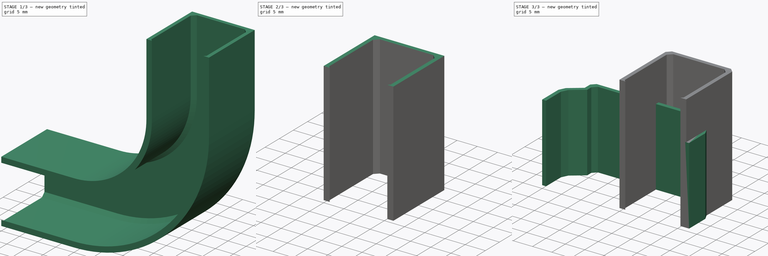
[diagram: build sequence overview — one tinted view per stage of 3, left to right]
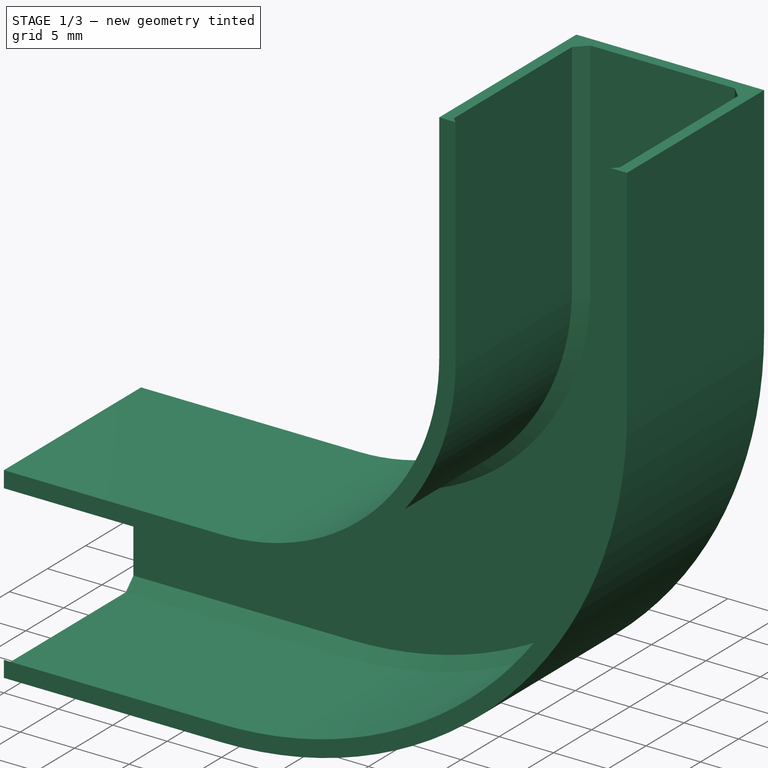
[diagram: stage 1 of 3 — iso view after this stage's code; geometry added in this stage tinted green]
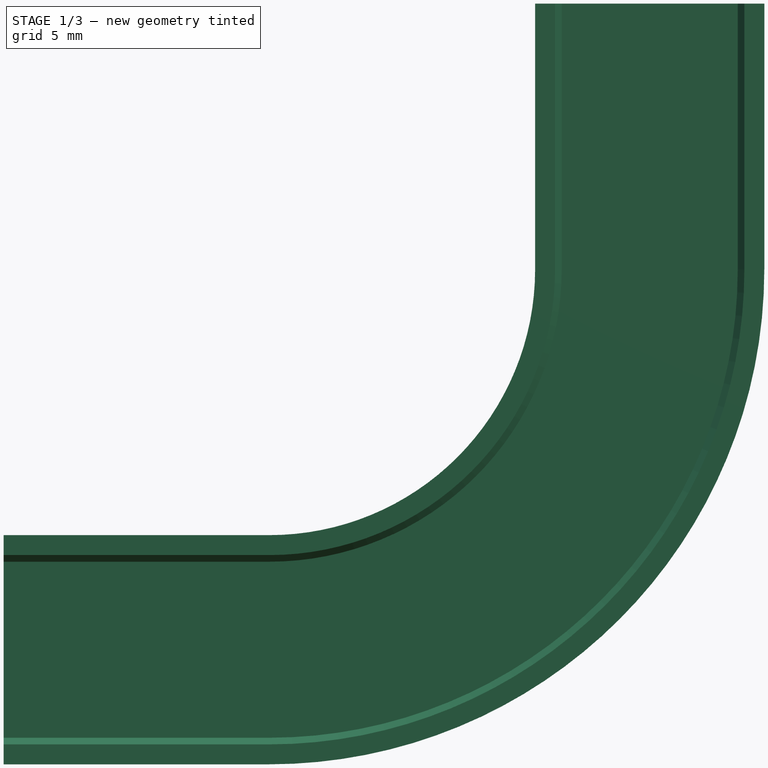
[diagram: stage 1 of 3 — front view after this stage's code; geometry added in this stage tinted green]
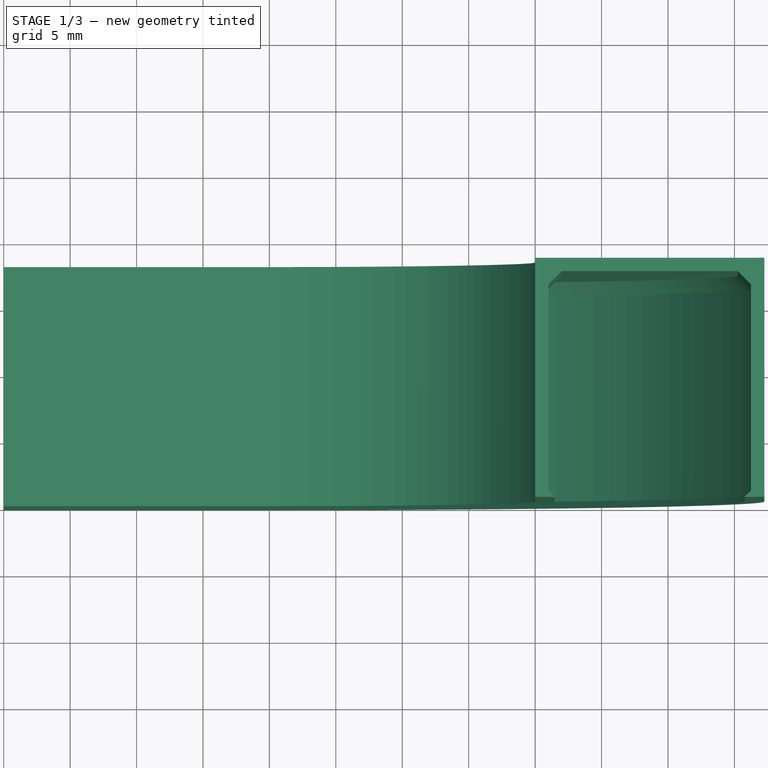
[diagram: stage 1 of 3 — top view after this stage's code; geometry added in this stage tinted green]
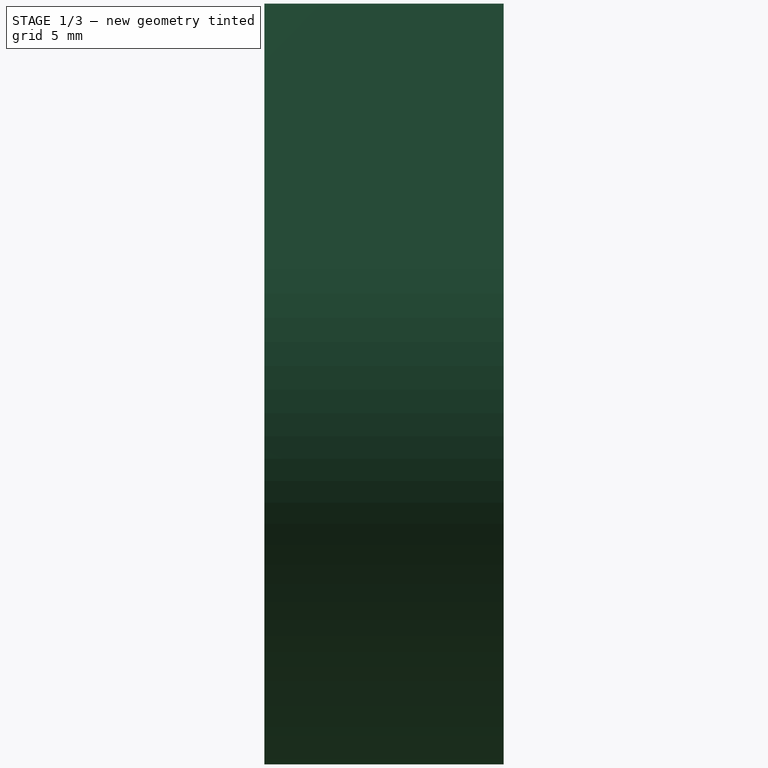
[diagram: stage 1 of 3 — right view after this stage's code; geometry added in this stage tinted green]
FCSTD DOCUMENT  (FreeCAD 0.21R33771 (Git))
Label: CableDuct15x17
License: All rights reserved
LicenseURL: https://en.wikipedia.org/wiki/All_rights_reserved
objects: PartDesign::Pad×4, PartDesign::Chamfer×3, PartDesign::Body×3, Sketcher::SketchObject×2, PartDesign::SubShapeBinder×2, Spreadsheet::Sheet×1, PartDesign::Revolution×1
note: 23 computed .brp shape members not serialized (recipe doc carries the construction recipe); baked Part::Feature solids carry a one-line shape summary decoded from their .brp

FEATURE [PartDesign::Body] Body  label="ClampBody"
  Group = -> [Sketch,Pad,Chamfer]
  Origin = -> Origin
  Tip = -> Chamfer
FEATURE [Sketcher::SketchObject] Sketch001
  FullyConstrained = true
  MapMode = 5
  Support = -> [XY_Plane001]
  expr: Constraints[20] = .Constraints.thickness
  expr: Constraints[21] = .Constraints.thickness
  expr: Constraints[32] = .Constraints.thickness
  expr: Constraints[42] = .Constraints.thickness
  sketch-geometry (16):
    g0: LineSegment StartX=21.5 StartY=0 StartZ=0 EndX=21 EndY=0.5 EndZ=0
    g1: LineSegment StartX=36.25 StartY=0.5 StartZ=0 EndX=35.75 EndY=0 EndZ=0
    g2: LineSegment StartX=35.75 StartY=0 StartZ=0 EndX=37.25 EndY=0 EndZ=0
    g3: LineSegment StartX=37.25 StartY=0 StartZ=0 EndX=37.25 EndY=18 EndZ=0
    g4: LineSegment StartX=37.25 StartY=18 StartZ=0 EndX=20 EndY=18 EndZ=0
    g5: LineSegment StartX=20 StartY=18 StartZ=0 EndX=20 EndY=0 EndZ=0
    g6: LineSegment StartX=20 StartY=0 StartZ=0 EndX=21.5 EndY=0 EndZ=0
    g7: LineSegment StartX=21 StartY=17 StartZ=0 EndX=22 EndY=17 EndZ=0
    g8: LineSegment StartX=21 StartY=0.5 StartZ=0 EndX=21 EndY=16 EndZ=0
    g9: LineSegment StartX=21 StartY=16 StartZ=0 EndX=21 EndY=17 EndZ=0
    g10: LineSegment StartX=22 StartY=17 StartZ=0 EndX=21 EndY=16 EndZ=0
    g11: LineSegment StartX=22 StartY=17 StartZ=0 EndX=35.25 EndY=17 EndZ=0
    g12: LineSegment StartX=35.25 StartY=17 StartZ=0 EndX=36.25 EndY=17 EndZ=0
    g13: LineSegment StartX=36.25 StartY=17 StartZ=0 EndX=36.25 EndY=16 EndZ=0
    g14: LineSegment StartX=36.25 StartY=16 StartZ=0 EndX=36.25 EndY=0.5 EndZ=0
    g15: LineSegment StartX=35.25 StartY=17 StartZ=0 EndX=36.25 EndY=16 EndZ=0
  constraints (46):
    c: PointOnObject(g0,g-1)
    c: Coincident(g0,g8)
    c: Coincident(g9,g7)
    c: Coincident(g12,g13)
    c: Coincident(g14,g1)
    c: PointOnObject(g1,g-1)
    c: Coincident(g1,g2)
    c: PointOnObject(g2,g-1)
    c: Coincident(g2,g3)
    c: Vertical(g3)
    c: Coincident(g3,g4)
    c: Horizontal(g4)
    c: Coincident(g4,g5)
    c: PointOnObject(g5,g-1)
    c: Vertical(g5)
    c: Coincident(g6,g5)
    c: Coincident(g6,g0)
    c: DistanceY(g-1,g9) = 17
    c: DistanceX(g7,g12) = 15.25
    c: DistanceX(g4,g9) = 1  'thickness'
    c: DistanceX(g12,g3) = 1
    c: DistanceY(g12,g3) = 1
    c: Angle(g2,g1) = 0.785398
    c: DistanceX(g2,g2) = 1.5
    c: Coincident(g7,g11)
    c: Horizontal(g7)
    c: Coincident(g8,g9)
    c: Vertical(g8)
    c: Vertical(g9)
    c: Coincident(g10,g7)
    c: Coincident(g10,g8)
    c: Angle(g7,g10) = 0.785398
    c: DistanceX(g7,g7) = 1
    c: Coincident(g11,g12)
    c: Horizontal(g11)
    c: Horizontal(g12)
    c: Coincident(g13,g14)
    c: Vertical(g13)
    c: Vertical(g14)
    c: Coincident(g15,g11)
    c: Coincident(g15,g13)
    c: Angle(g15,g12) = 0.785398
    c: DistanceX(g12,g12) = 1
    c: DistanceX(g-1,g5) = 20
    c: Equal(g2,g6)
    c: Equal(g8,g14)
FEATURE [PartDesign::SubShapeBinder] Binder
  BindCopyOnChange = 0
  BindMode = 0
  ClaimChildren = false
  Context = -> Body001 [Binder.]
  Fuse = false
  MakeFace = true
  OffsetFill = false
  OffsetIntersection = false
  OffsetJoinType = 0
  OffsetOpenResult = false
  PartialLoad = false
  Placement = pos=(0,0,0) rot=(0,-1,0;-1.5708rad)
  Relative = true
  Support = -> [Sketch001]
  _Version = 2
  expr: .Placement.Rotation.Angle = -90 °
FEATURE [Spreadsheet::Sheet] Spreadsheet  label="SideCorner"
  cells = A1='overlap; B1(overlap)==20 mm
FEATURE [PartDesign::Revolution] Revolution
  Angle = 90
  Axis = (0,1,0)
  Base = (0,0,0)
  Profile = -> Sketch001
  ReferenceAxis = -> Sketch001 [V_Axis]
FEATURE [PartDesign::Pad] Pad001
  BaseFeature = -> Revolution
  Direction = (1,0,-2e-16)
  Length = 20
  Length2 = 10
  Profile = -> Binder
  Reversed = true
  Type = 0
  expr: Length = <<SideCorner>>.overlap
FEATURE [PartDesign::Pad] Pad002
  BaseFeature = -> Pad001
  Direction = (0,0,1)
  Length = 20
  Length2 = 10
  Profile = -> Sketch001
  ReferenceAxis = -> Sketch001 [N_Axis]
  Type = 0
  expr: Length = <<SideCorner>>.overlap
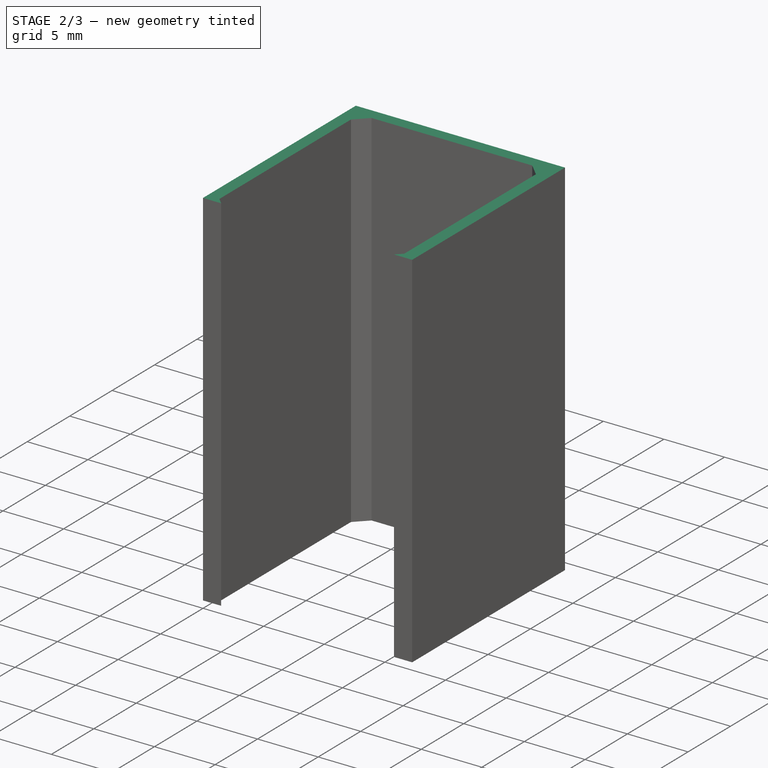
[diagram: stage 2 of 3 — iso view after this stage's code; geometry added in this stage tinted green]
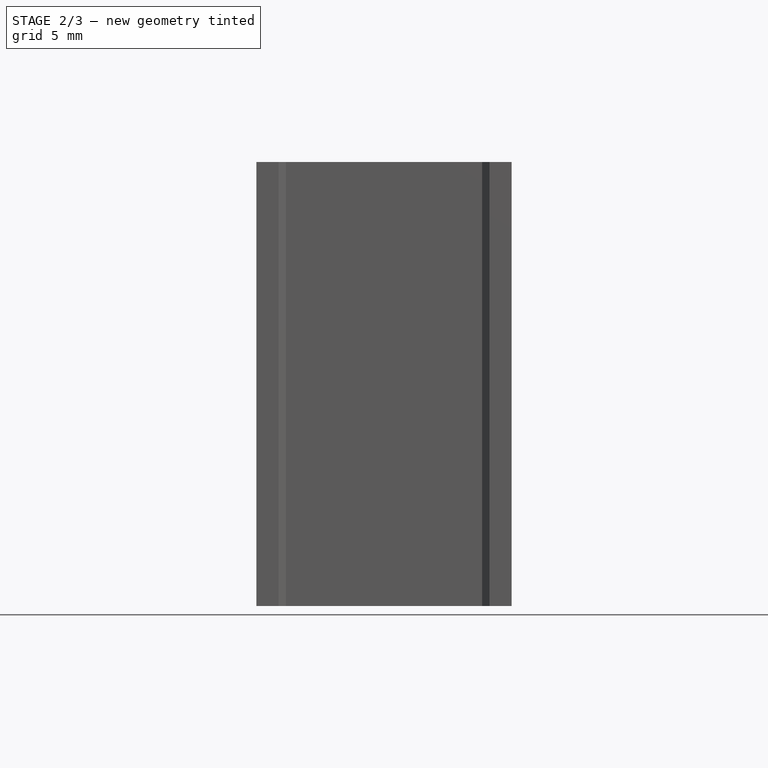
[diagram: stage 2 of 3 — front view after this stage's code; geometry added in this stage tinted green]
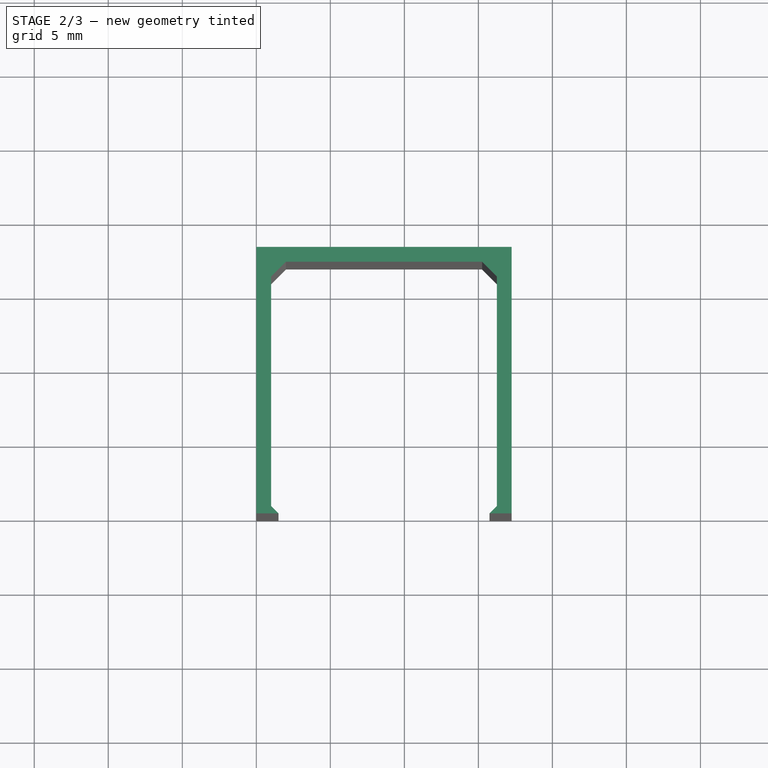
[diagram: stage 2 of 3 — top view after this stage's code; geometry added in this stage tinted green]
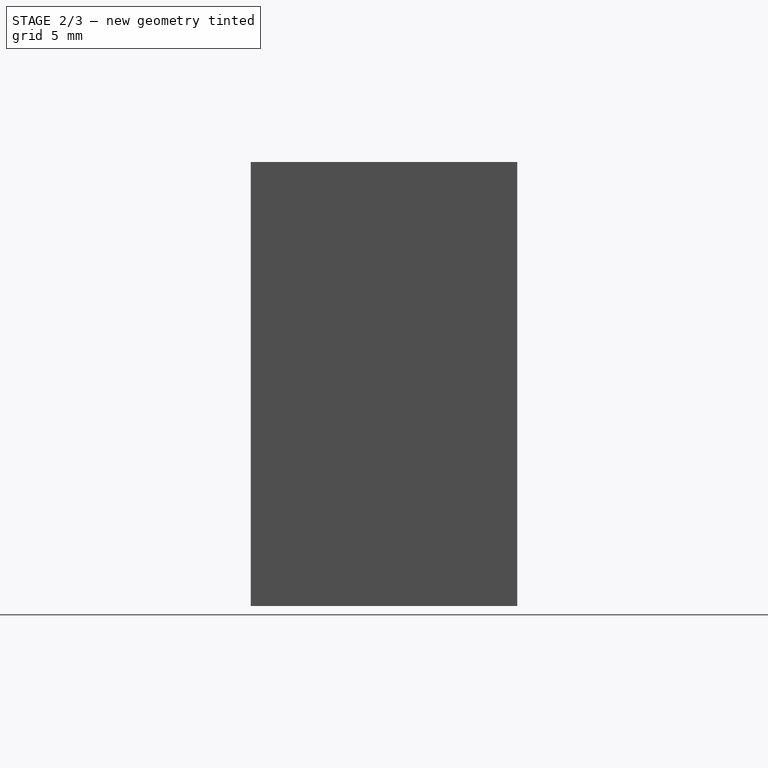
[diagram: stage 2 of 3 — right view after this stage's code; geometry added in this stage tinted green]
FEATURE [PartDesign::Chamfer] Chamfer001
  Angle = 45
  Base = -> Pad002 [Edge62,Edge64]
  BaseFeature = -> Pad002
  ChamferType = 0
  FlipDirection = false
  Size = 1
  Size2 = 1
  SupportTransform = false
  UseAllEdges = false
FEATURE [PartDesign::Body] Body001  label="SideCornerBody"
  Group = -> [Sketch001,Binder,Revolution,Pad001,Pad002,Chamfer001]
  Origin = -> Origin001
  Tip = -> Chamfer001
FEATURE [PartDesign::SubShapeBinder] Binder001
  BindCopyOnChange = 0
  BindMode = 0
  ClaimChildren = false
  Context = -> Body002 [Binder001.]
  Fuse = false
  MakeFace = true
  OffsetFill = false
  OffsetIntersection = false
  OffsetJoinType = 0
  OffsetOpenResult = false
  PartialLoad = false
  Relative = true
  Support = -> [Body001[Revolution.Sketch001.]]
  _Version = 2
FEATURE [PartDesign::Pad] Pad003
  Direction = (0,0,1)
  Length = 30
  Length2 = 10
  Profile = -> Binder001
  Type = 0
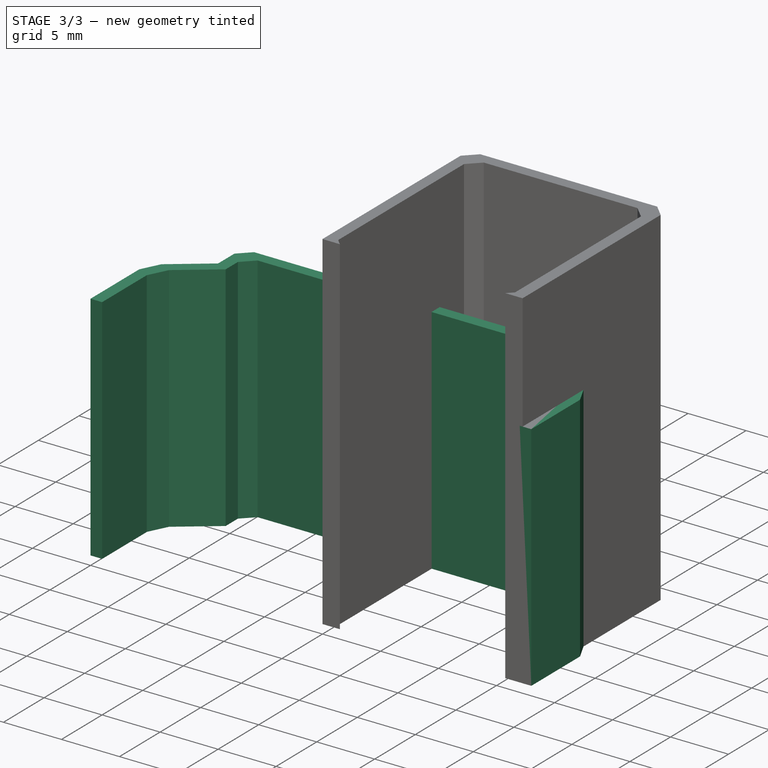
[diagram: stage 3 of 3 — iso view after this stage's code; geometry added in this stage tinted green]
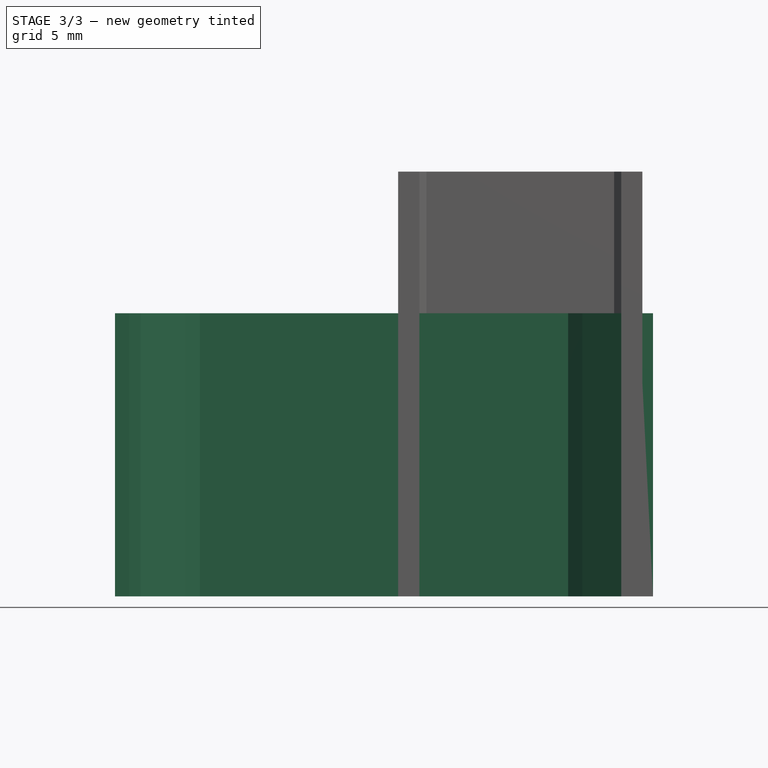
[diagram: stage 3 of 3 — front view after this stage's code; geometry added in this stage tinted green]
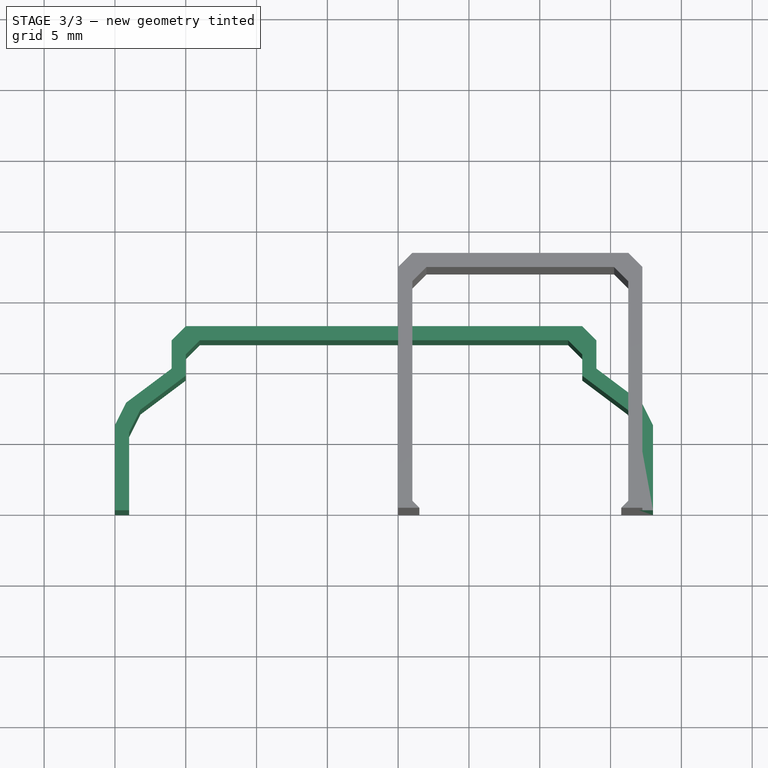
[diagram: stage 3 of 3 — top view after this stage's code; geometry added in this stage tinted green]
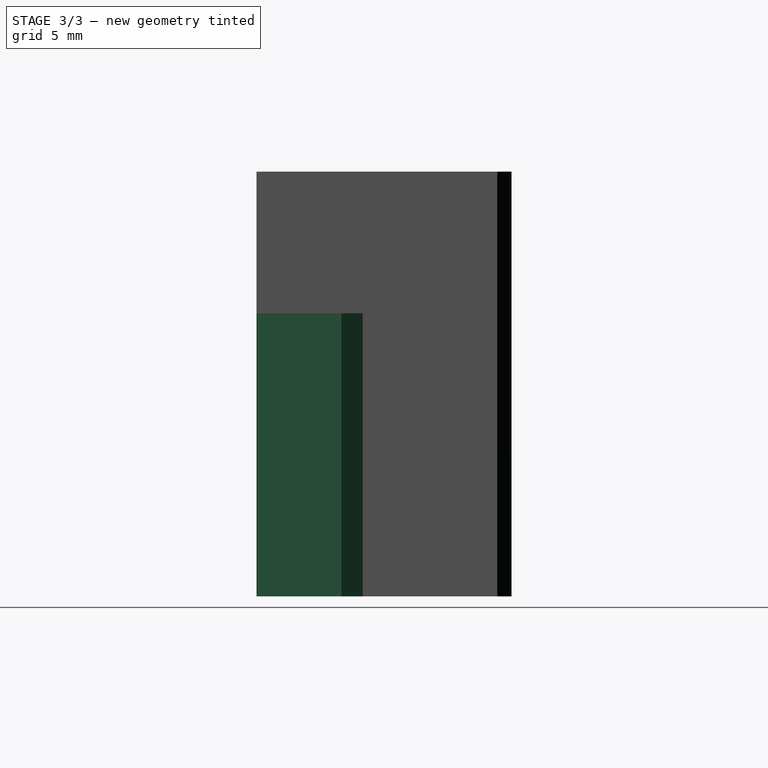
[diagram: stage 3 of 3 — right view after this stage's code; geometry added in this stage tinted green]
FEATURE [Sketcher::SketchObject] Sketch
  FullyConstrained = true
  MapMode = 5
  Support = -> [XY_Plane]
  expr: Constraints[45] = .Constraints.thickness
  expr: Constraints[47] = .Constraints.thickness
  expr: Constraints[51] = .Constraints.thickness
  sketch-geometry (18):
    g0: LineSegment StartX=0 StartY=0 StartZ=0 EndX=0 EndY=7 EndZ=0
    g1: LineSegment StartX=0 StartY=7 StartZ=0 EndX=4 EndY=10 EndZ=0
    g2: LineSegment StartX=4 StartY=10 StartZ=0 EndX=4 EndY=13 EndZ=0
    g3: LineSegment StartX=4 StartY=13 StartZ=0 EndX=34 EndY=13 EndZ=0
    g4: LineSegment StartX=34 StartY=13 StartZ=0 EndX=34 EndY=10 EndZ=0
    g5: LineSegment StartX=34 StartY=10 StartZ=0 EndX=38 EndY=7 EndZ=0
    g6: LineSegment StartX=38 StartY=7 StartZ=0 EndX=38 EndY=0 EndZ=0
    g7: LineSegment StartX=4 StartY=10 StartZ=0 EndX=34 EndY=10 EndZ=0
    g8: LineSegment StartX=0 StartY=0 StartZ=0 EndX=1 EndY=0 EndZ=0
    g9: LineSegment StartX=1 StartY=0 StartZ=0 EndX=1 EndY=6.5 EndZ=0
    g10: LineSegment StartX=1 StartY=6.5 StartZ=0 EndX=5 EndY=9.5 EndZ=0
    g11: LineSegment StartX=5 StartY=9.5 StartZ=0 EndX=5 EndY=12 EndZ=0
    g12: LineSegment StartX=5 StartY=12 StartZ=0 EndX=33 EndY=12 EndZ=0
    g13: LineSegment StartX=33 StartY=12 StartZ=0 EndX=33 EndY=9.5 EndZ=0
    g14: LineSegment StartX=33 StartY=9.5 StartZ=0 EndX=37 EndY=6.5 EndZ=0
    g15: LineSegment StartX=37 StartY=6.5 StartZ=0 EndX=37 EndY=0 EndZ=0
    g16: LineSegment StartX=37 StartY=0 StartZ=0 EndX=38 EndY=0 EndZ=0
    g17: LineSegment StartX=1 StartY=6.5 StartZ=0 EndX=0.4 EndY=7.3 EndZ=0
  constraints (52):
    c: Coincident(g-1,g0)
    c: PointOnObject(g0,g-2)
    c: Coincident(g0,g1)
    c: Coincident(g1,g2)
    c: Vertical(g2)
    c: Coincident(g2,g3)
    c: Horizontal(g3)
    c: Coincident(g3,g4)
    c: Vertical(g4)
    c: Coincident(g4,g5)
    c: Coincident(g5,g6)
    c: PointOnObject(g6,g-1)
    c: Vertical(g6)
    c: DistanceX(g0,g6) = 38
    c: Equal(g0,g6)
    c: Equal(g5,g1)
    c: DistanceX(g3,g3) = 30
    c: Coincident(g7,g1)
    c: DistanceY(g0,g0) = 7
    c: Coincident(g7,g4)
    c: Horizontal(g7)
    c: DistanceY(g0,g2) = 13
    c: DistanceY(g0,g1) = 10
    c: Coincident(g8,g0)
    c: PointOnObject(g8,g-1)
    c: Coincident(g8,g9)
    c: Vertical(g9)
    c: Coincident(g9,g10)
    c: Coincident(g10,g11)
    c: Vertical(g11)
    c: Coincident(g11,g12)
    c: Horizontal(g12)
    c: Coincident(g12,g13)
    c: Vertical(g13)
    c: Coincident(g13,g14)
    c: Coincident(g14,g15)
    c: PointOnObject(g15,g-1)
    c: Vertical(g15)
    c: Coincident(g15,g16)
    c: Coincident(g16,g6)
    c: Parallel(g10,g1)
    c: Parallel(g14,g5)
    c: Equal(g11,g13)
    c: Equal(g15,g9)
    c: DistanceY(g11,g2) = 1  'thickness'
    c: DistanceX(g0,g8) = 1
    c: Equal(g8,g16)
    c: DistanceX(g2,g11) = 1
    c: Coincident(g17,g9)
    c: PointOnObject(g17,g1)
    c: Perpendicular(g10,g17)
    c: Distance(g17) = 1
FEATURE [PartDesign::Pad] Pad
  Direction = (0,0,1)
  Length = 20
  Length2 = 10
  Profile = -> Sketch
  ReferenceAxis = -> Sketch [N_Axis]
  Type = 0
FEATURE [PartDesign::Chamfer] Chamfer
  Angle = 45
  Base = -> Pad [Edge8,Edge2,Edge11,Edge17,Edge41,Edge35,Edge32,Edge26]
  BaseFeature = -> Pad
  ChamferType = 0
  FlipDirection = false
  Size = 1
  Size2 = 1
  SupportTransform = false
  UseAllEdges = false
FEATURE [PartDesign::Chamfer] Chamfer002
  Angle = 45
  Base = -> Pad003 [Edge20,Edge17]
  BaseFeature = -> Pad003
  ChamferType = 0
  FlipDirection = false
  Size = 1
  Size2 = 1
  SupportTransform = false
  UseAllEdges = false
FEATURE [PartDesign::Body] Body002  label="ConnectorBody"
  Group = -> [Binder001,Pad003,Chamfer002]
  Origin = -> Origin002
  Tip = -> Chamfer002
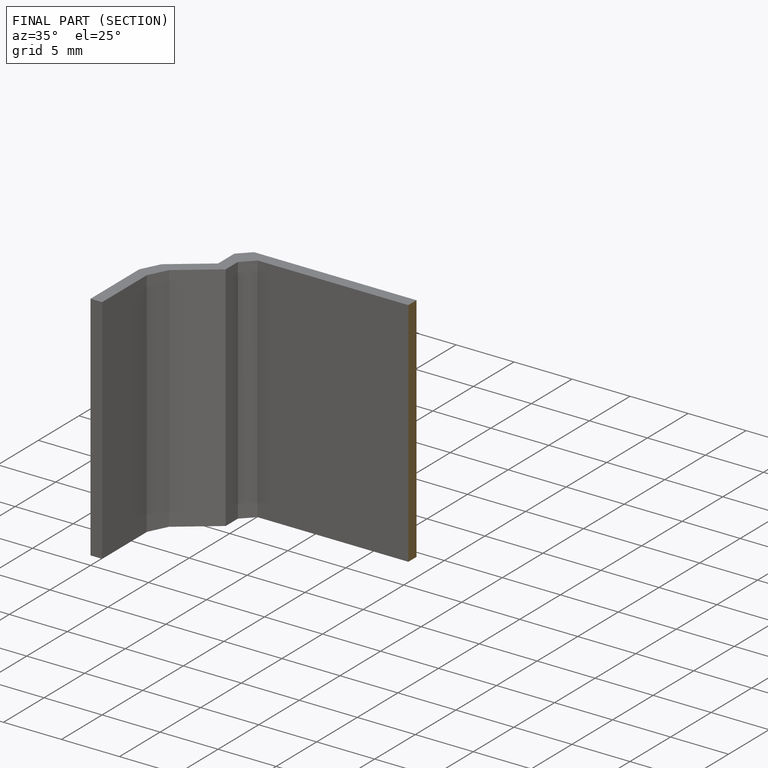
[diagram: finished part — half-section view (interior)]
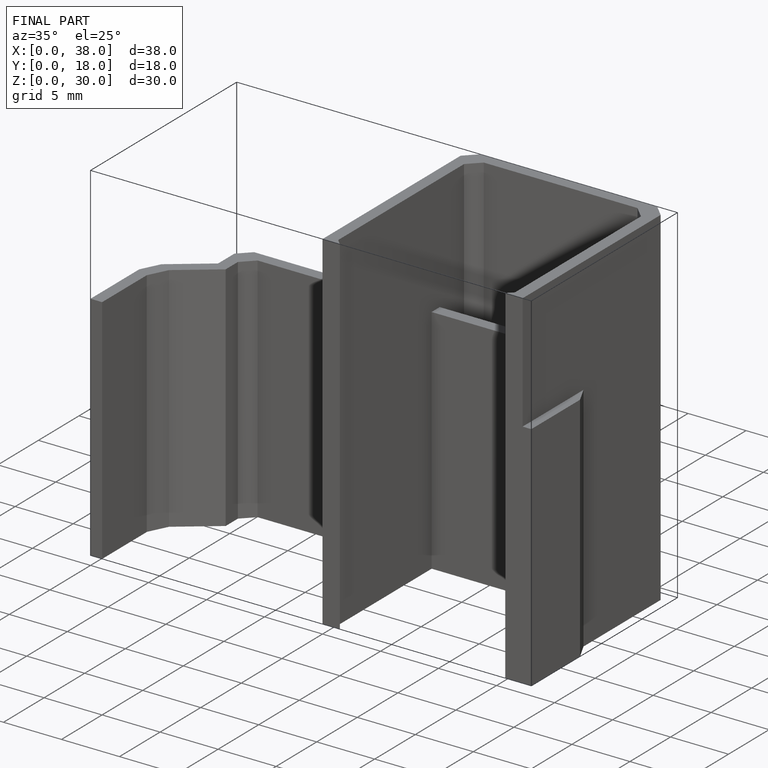
[diagram: finished part — iso view with bounding-box wireframe]
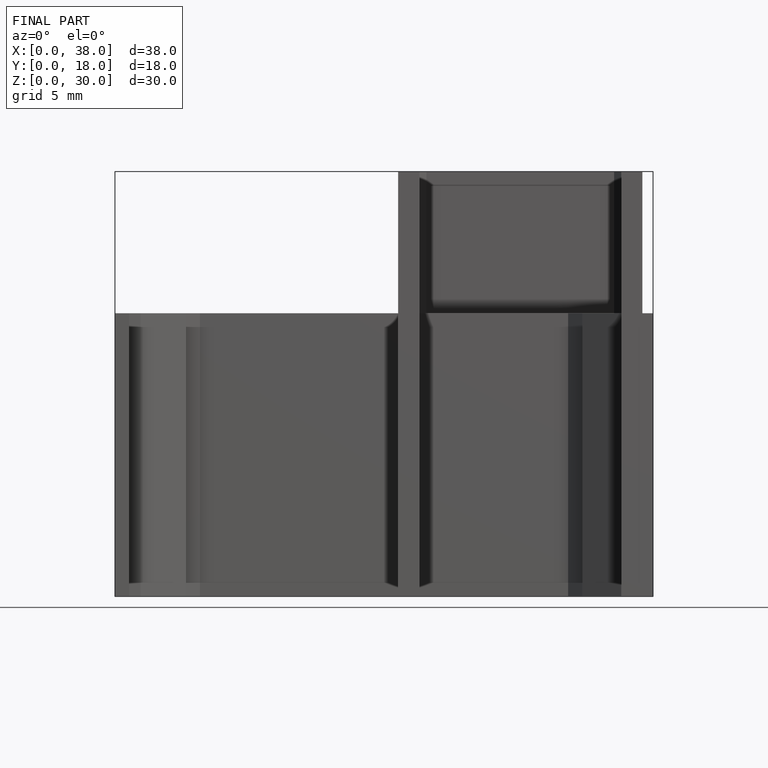
[diagram: finished part — front view with bounding-box wireframe]
